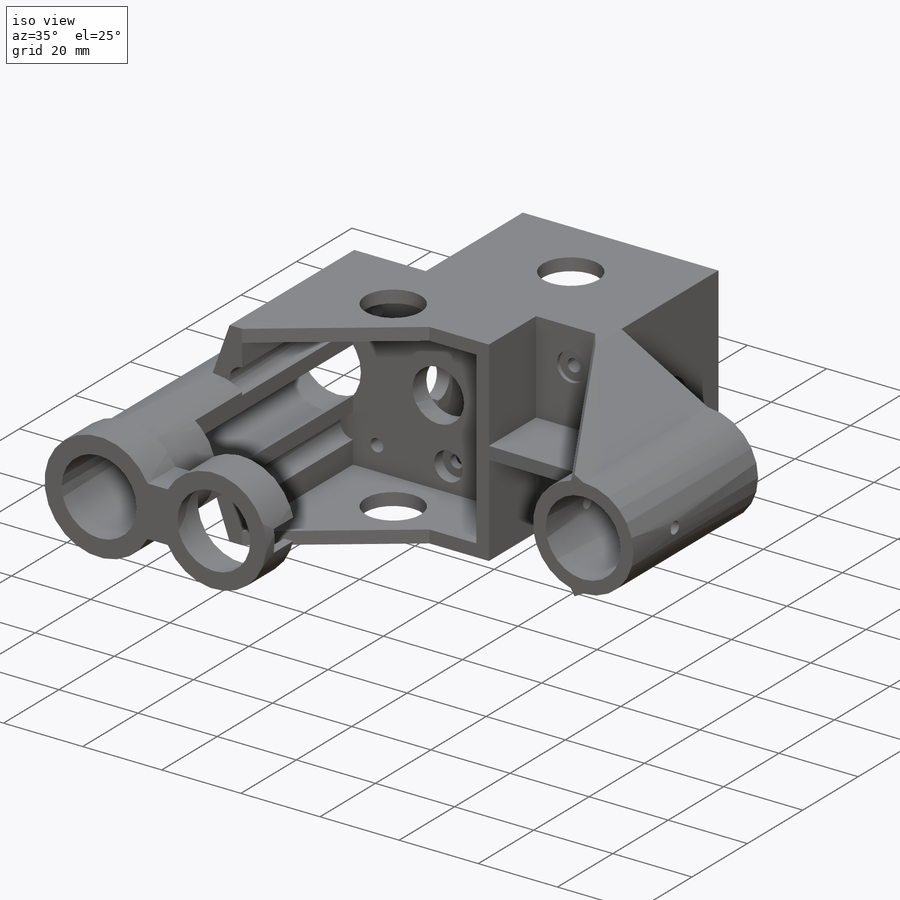
[diagram: iso view]
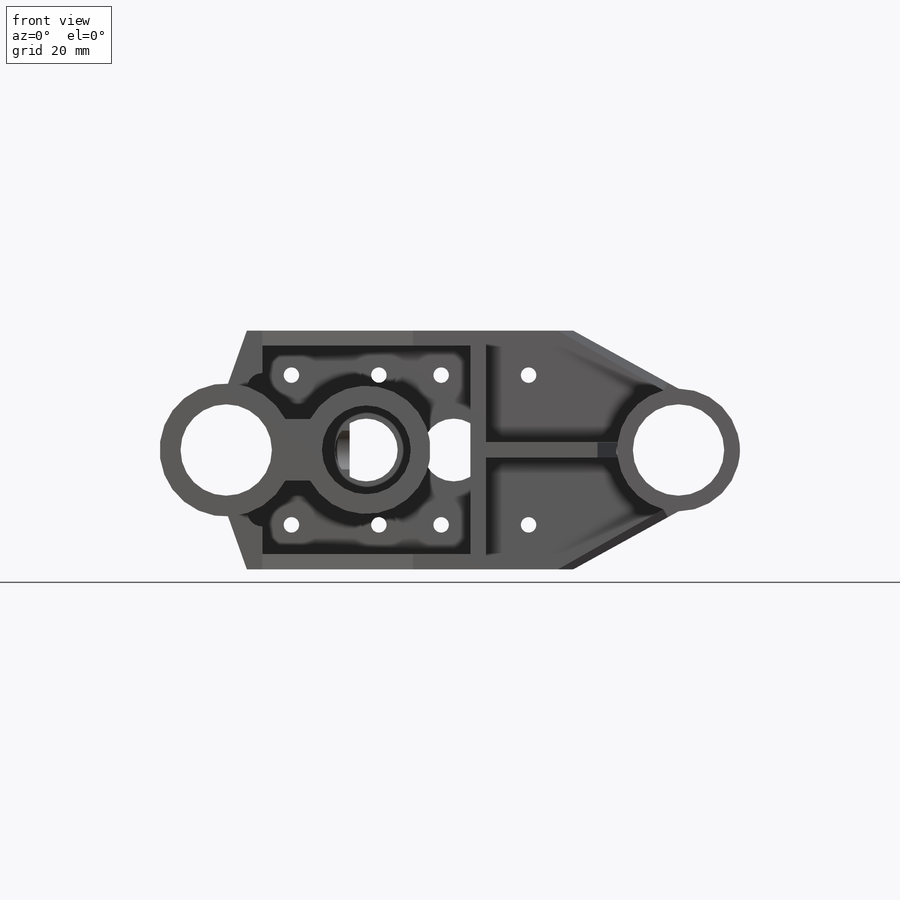
[diagram: front view]
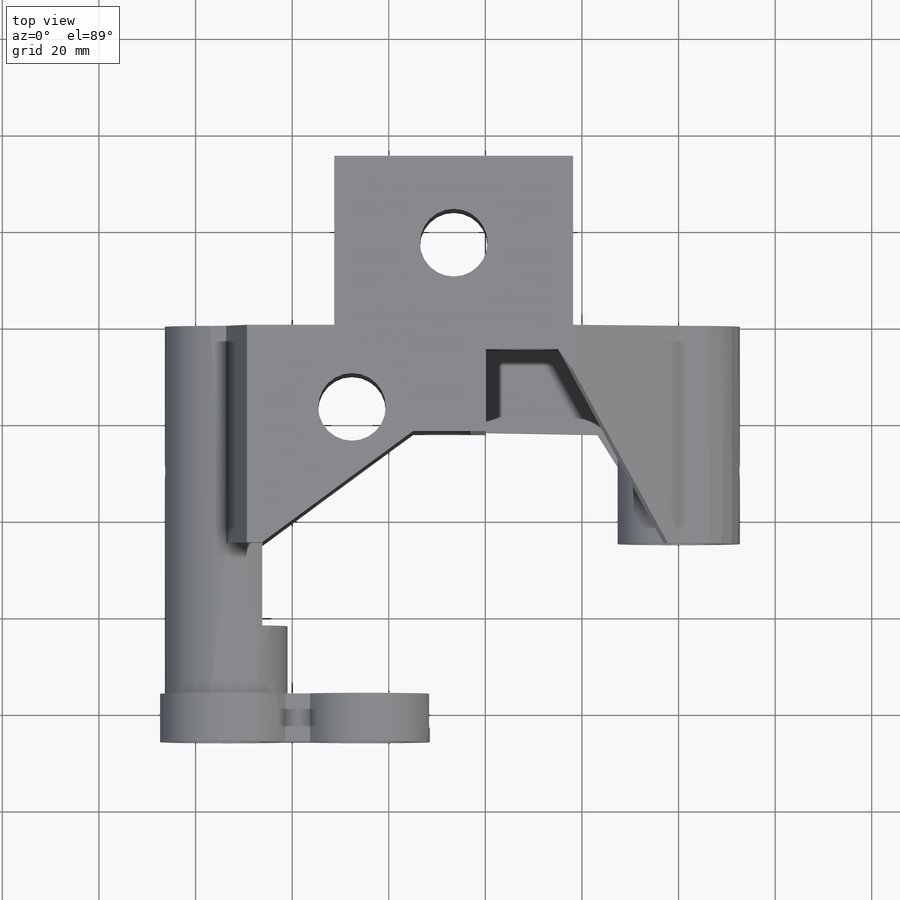
[diagram: top view]
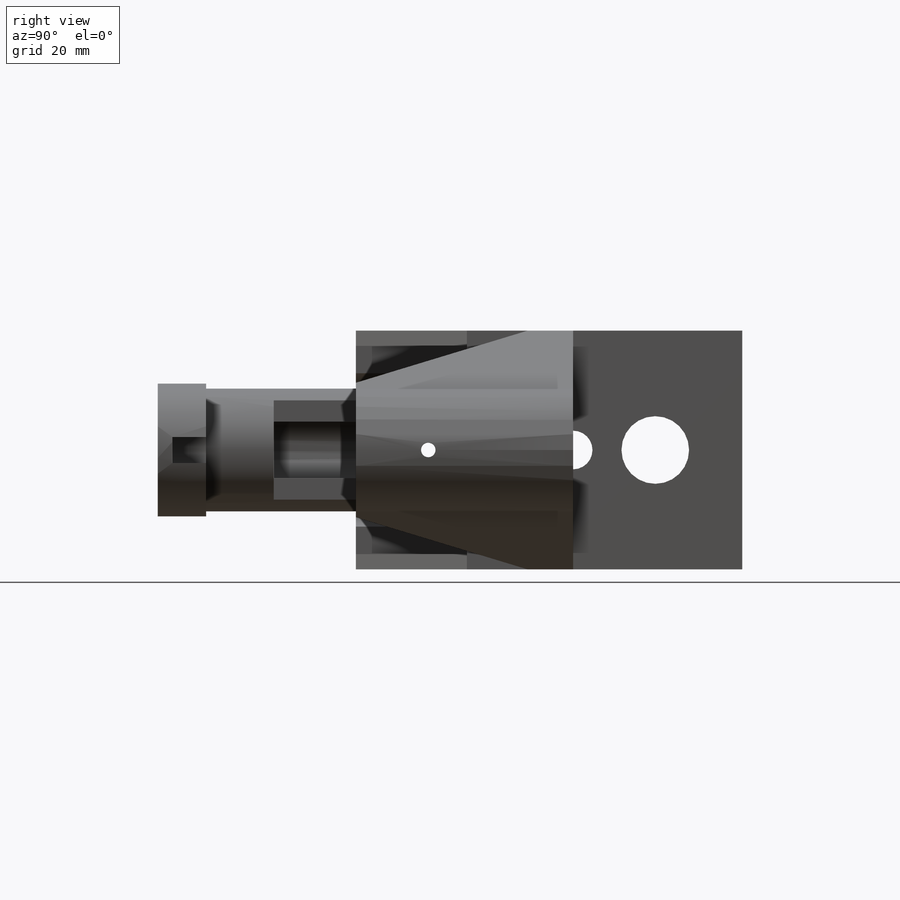
[diagram: right view]
SOLIDWORKS PART (.sldprt)
format: sldprt  version: not decoded by parser v0  size: 804,864 bytes
history: native  units: mm
features: sketch x18, cut_extrude x10, extrude x7, material x1 (+15 scaffold rows collapsed)
feature tree (51):
  scaffold x15  (default folders/planes/origin — collapsed)
  material  "A-Glass Fiber"
  sketch  "Sketch4"  dims[c1.D20=~12.224278mm c1.D18=15.5mm c1.D26=~12.683392mm c1.D27=~12.687053mm c1.D28=~12.683392mm c1.D1=58.32mm c1.D2=31.0mm c1.D3=15.58mm c1.D4=31.0mm c1.D5=147.6375mm c1.D6=15.5mm c1.D7=15.5mm c1.D8=6.05mm c1.D9=6.05mm c1.D10=6.05mm c1.D11=6.05mm c1.D12=6.05mm c1.D13=6.05mm c1.D14=3.175mm c1.D15=3.175mm c1.D16=3.175mm c1.D17=3.175mm c2.D18=~73.931507mm c2.D19=3.175mm c2.D5=21.825mm c2.D3=25.0mm c3.D18=29.0mm c3.D20=3.175mm c3.D21=3.175mm c3.D22=46.55mm c3.D23=47.1mm c3.D24=58.32mm c3.D25=147.6375mm c3.D26=73.82mm c4.D25=147.6375mm c4.D27=64.65mm c4.D20=~178.954708deg]
  sketch  "Sketch5"  dims[D1=~2.325903mm]
  extrude  "Extrude1"  Depth=5mm
  sketch  "Sketch6"  dims[D1=6.4mm]
  extrude  "Extrude2"  Depth=40mm
  sketch  "Sketch7"
  extrude  "Extrude3"  Depth=35mm
  sketch  "Sketch12"
  cut_extrude  "Extrude5"  [1 undecoded]
  sketch  "Sketch13"
  cut_extrude  "Extrude6"  [1 undecoded]
  sketch  "Sketch16"  dims[D1=17.0mm]
  cut_extrude  "Extrude9"  [1 undecoded]
  sketch  "Sketch17"
  extrude  "Extrude10"  Depth=17mm
  sketch  "Sketch18"
  extrude  "Extrude11"  Depth=14mm
  sketch  "Sketch19"  dims[D1=15.2mm]
  extrude  "Extrude12"  Depth=7mm
  sketch  "Sketch20"  dims[D1=~9.377136mm]
  extrude  "Extrude13"  Depth=3mm
  sketch  "Sketch21"  dims[D1=2.7mm]
  cut_extrude  "Extrude14"  Depth=15mm
  sketch  "Sketch22"  dims[D1=3.2mm]
  cut_extrude  "Extrude15"  Depth=3mm
  sketch  "Sketch23"  dims[D1=3.2mm]
  cut_extrude  "Extrude16"  Depth=3mm
  sketch  "Sketch24"  dims[D1=5.0mm]
  cut_extrude  "Extrude17"  [1 undecoded]
  sketch  "Sketch25"  dims[D1=7.5mm]
  cut_extrude  "Extrude18"  [1 undecoded]
  sketch  "Sketch26"  dims[D2=~1.637766mm D1=30.0mm]
  cut_extrude  "Extrude19"  [1 undecoded]
  sketch  "Sketch27"  dims[D1=~3.074644mm]
  cut_extrude  "Extrude20"  Depth=1mm
decode coverage: 24 of 35 modeling features carry decoded parameters
note: ~ marks probable driven/reference dimensions
note: 6 parameter values undecoded
summary: no parameter record found for 6 features
note: suppression state not decoded; provenance and decode notes live in map.json
